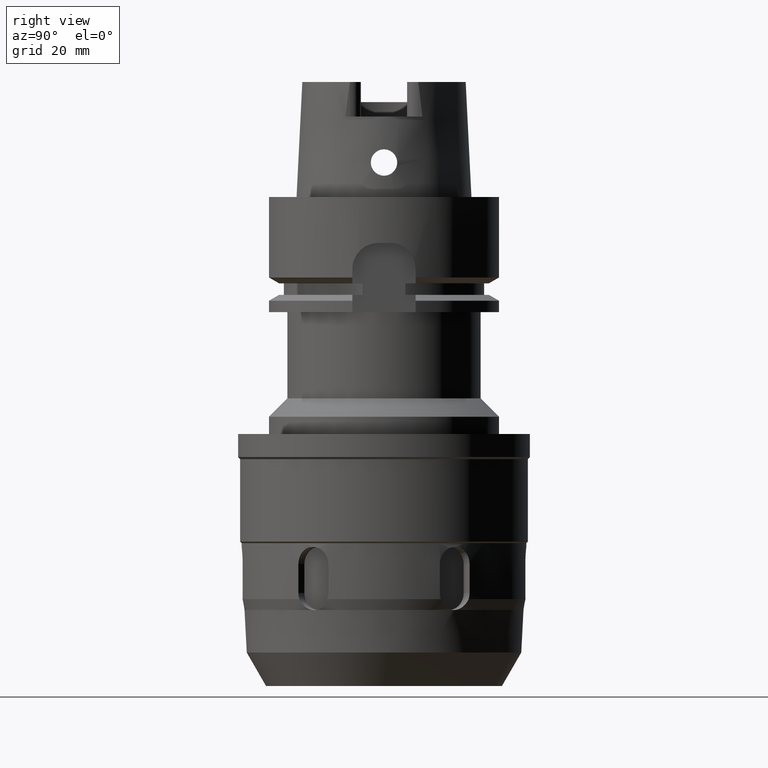
[diagram: clean part render]
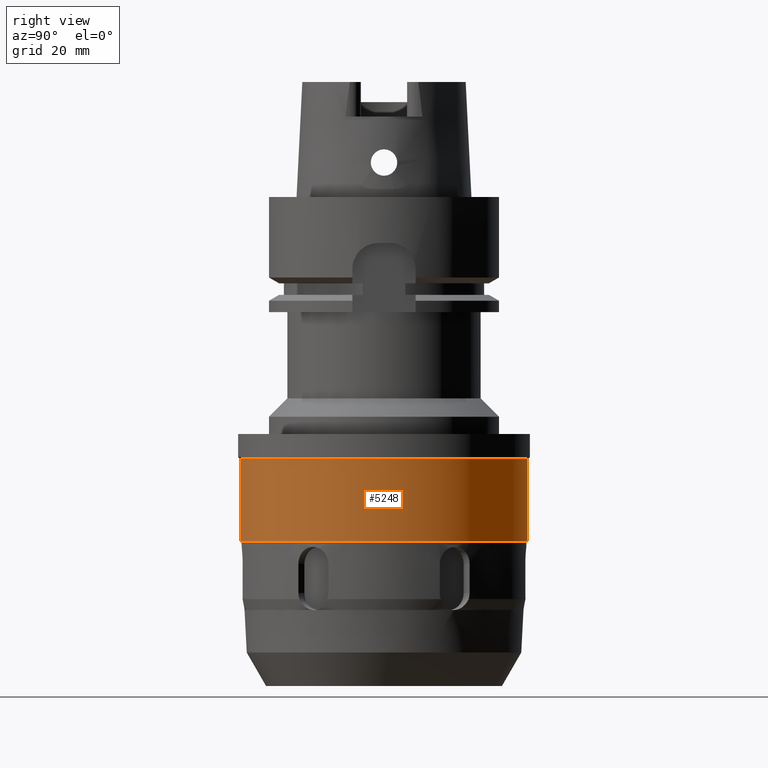
[diagram: same view with one face highlighted and labeled with its STEP entity id]
A machine part, right view. The second image highlights one B-rep face of the part: STEP entity #5248.
In plain terms, the highlighted cylindrical surface (partial cylindrical patch) has radius 25 mm, axis along (0, 0, -1).
Its self-contained STEP definition (entity closure, byte-faithful):
#1884=CARTESIAN_POINT('',(0.E0,0.E0,-5.99E1));
#1885=DIRECTION('',(0.E0,0.E0,1.E0));
#1886=DIRECTION('',(0.E0,-1.E0,0.E0));
#1887=AXIS2_PLACEMENT_3D('',#1884,#1885,#1886);
#1915=DIRECTION('',(0.E0,0.E0,-1.E0));
#1916=VECTOR('',#1915,1.435E1);
#1917=CARTESIAN_POINT('',(0.E0,-2.5E1,-4.555E1));
#1918=LINE('',#1917,#1916);
#1922=DIRECTION('',(0.E0,0.E0,-1.E0));
#1923=VECTOR('',#1922,1.435E1);
#1924=CARTESIAN_POINT('',(0.E0,2.5E1,-4.555E1));
#1925=LINE('',#1924,#1923);
#1936=CARTESIAN_POINT('',(0.E0,0.E0,-4.555E1));
#1937=DIRECTION('',(0.E0,0.E0,-1.E0));
#1938=DIRECTION('',(0.E0,1.E0,0.E0));
#1939=AXIS2_PLACEMENT_3D('',#1936,#1937,#1938);
#3775=CARTESIAN_POINT('',(0.E0,2.5E1,-5.99E1));
#3776=VERTEX_POINT('',#3775);
#3777=CARTESIAN_POINT('',(0.E0,-2.5E1,-5.99E1));
#3778=VERTEX_POINT('',#3777);
#3779=CARTESIAN_POINT('',(0.E0,2.5E1,-4.555E1));
#3780=VERTEX_POINT('',#3779);
#3781=CARTESIAN_POINT('',(0.E0,-2.5E1,-4.555E1));
#3782=VERTEX_POINT('',#3781);
#5236=CARTESIAN_POINT('',(0.E0,1.533870115932E-14,2.525E1));
#5237=DIRECTION('',(0.E0,0.E0,-1.E0));
#5238=DIRECTION('',(0.E0,-1.E0,0.E0));
#5239=AXIS2_PLACEMENT_3D('',#5236,#5237,#5238);
#5240=CYLINDRICAL_SURFACE('',#5239,2.5E1);
#5241=ORIENTED_EDGE('',*,*,#5226,.T.);
#5242=ORIENTED_EDGE('',*,*,#5203,.F.);
#5243=ORIENTED_EDGE('',*,*,#5230,.F.);
#5245=ORIENTED_EDGE('',*,*,#5244,.F.);
#5246=EDGE_LOOP('',(#5241,#5242,#5243,#5245));
#5247=FACE_OUTER_BOUND('',#5246,.F.);
#1888=CIRCLE('',#1887,2.5E1);
#1940=CIRCLE('',#1939,2.5E1);
#5203=EDGE_CURVE('',#3778,#3776,#1888,.T.);
#5226=EDGE_CURVE('',#3780,#3776,#1925,.T.);
#5230=EDGE_CURVE('',#3782,#3778,#1918,.T.);
#5244=EDGE_CURVE('',#3780,#3782,#1940,.T.);
#5248=ADVANCED_FACE('',(#5247),#5240,.T.);